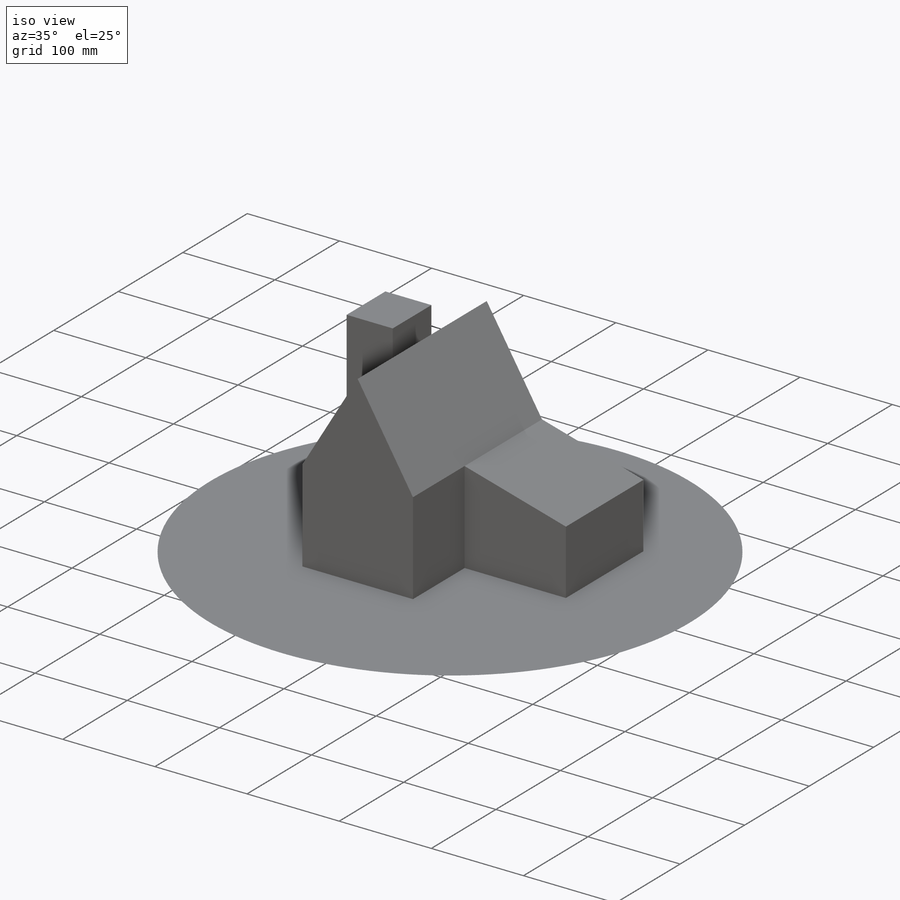
[diagram: iso view]
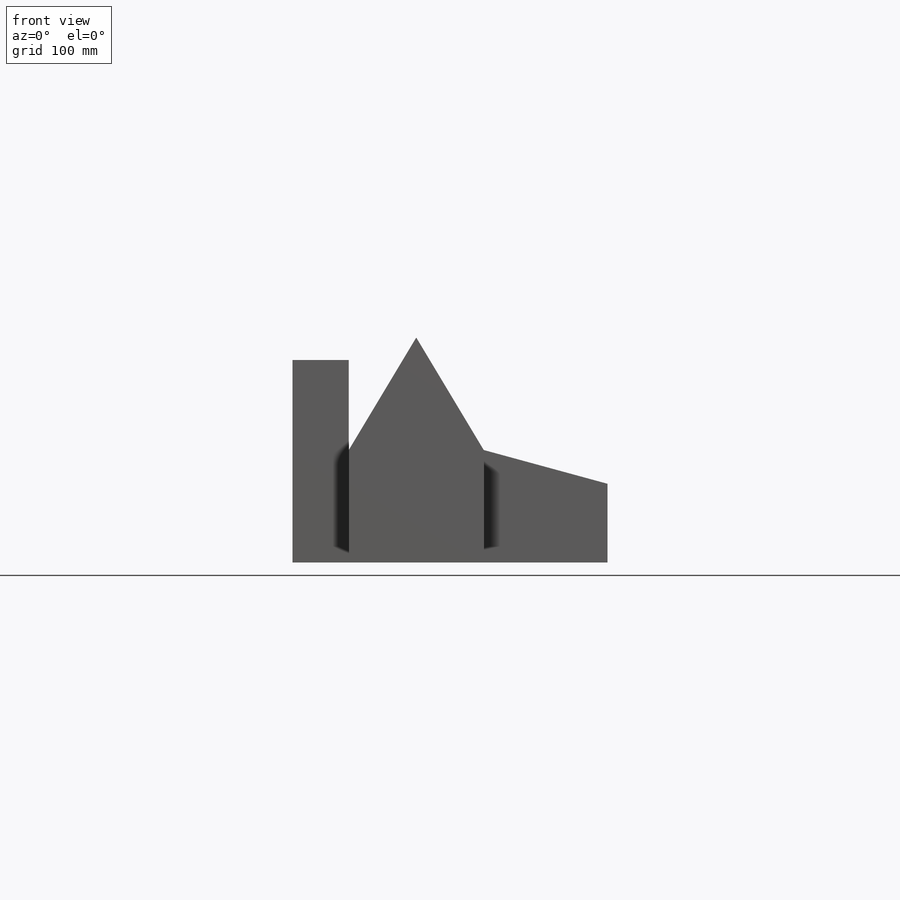
[diagram: front view]
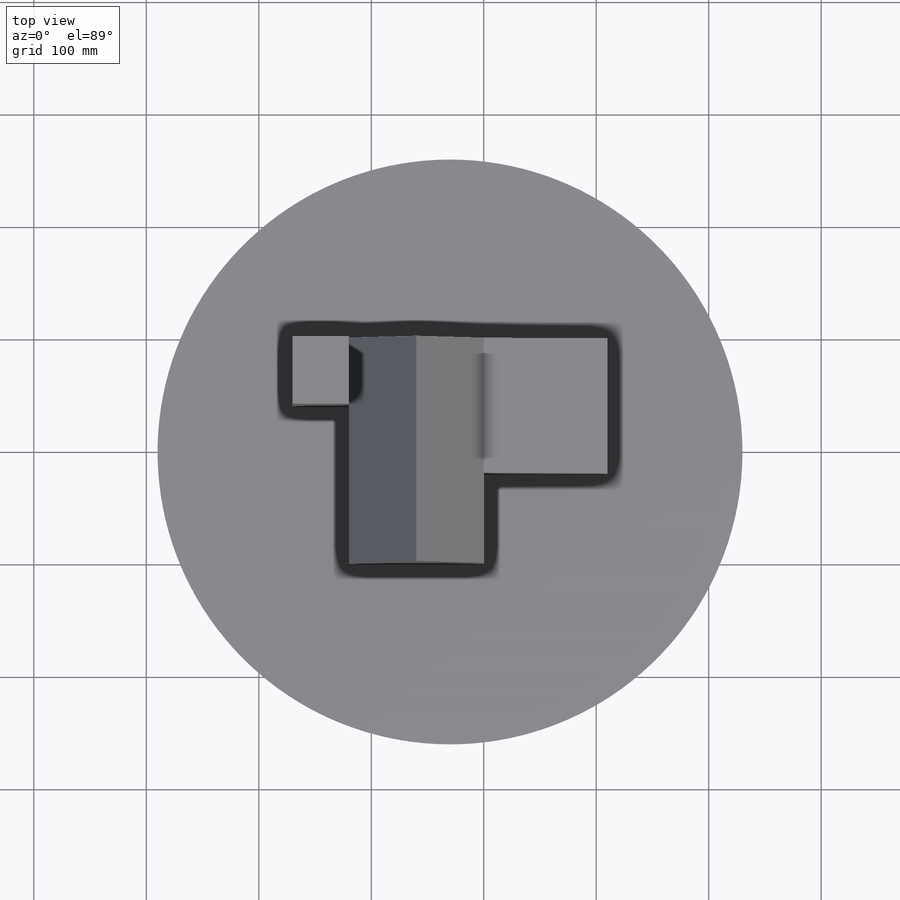
[diagram: top view]
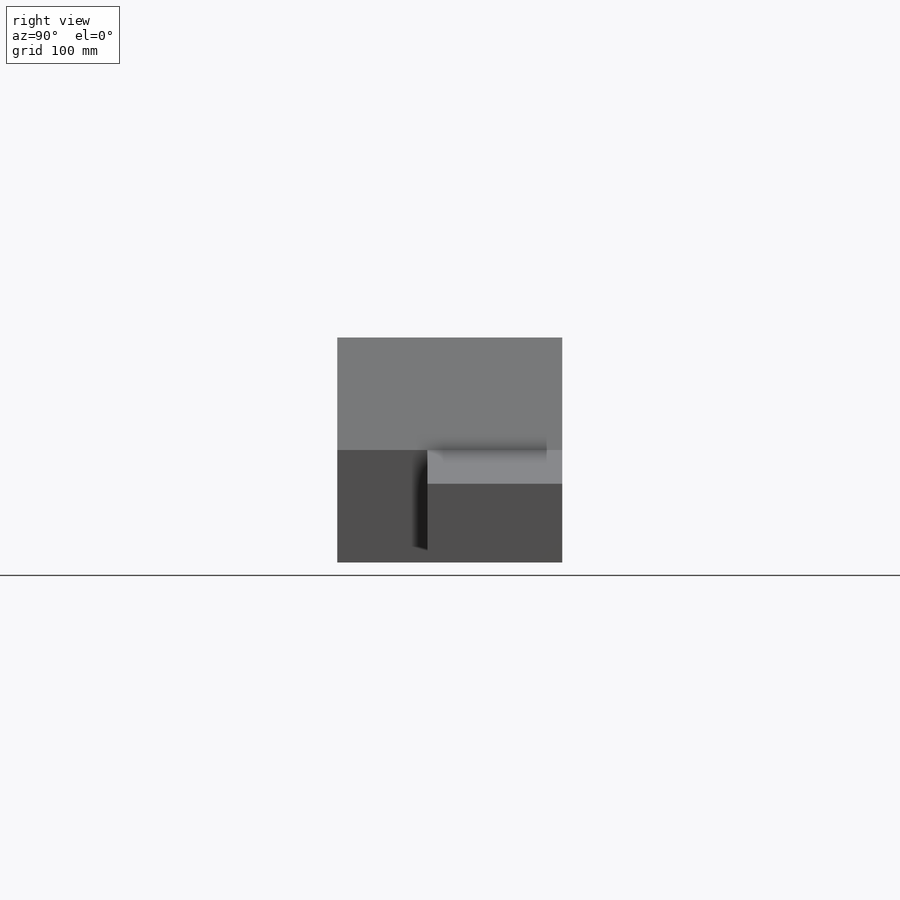
[diagram: right view]
SOLIDWORKS PART (.sldprt)
format: sldprt  version: not decoded by parser v0  size: 239,104 bytes
history: native  units: mm
features: sketch x4, extrude x3, material x1, cut_extrude x1 (+14 scaffold rows collapsed)
feature tree (23):
  scaffold x14  (default folders/planes/origin — collapsed)
  material  "Material <not specified>"
  sketch  "Sketch1"  dims[c1.D1=110.0mm c1.D2=120.0mm c1.D3=200.0mm c1.D4=70.0mm c1.D5=30.0mm c1.D6=100.0mm c1.D7=~78.035607mm c2.D2=100.0mm c2.D6=60.0mm c2.D7=60.0mm c2.D8=120.0mm]
  extrude  "Extrude1"  Depth=200mm
  sketch  "Sketch2"  dims[D1=80.0mm]
  cut_extrude  "Extrude2"  Depth=200mm
  sketch  "Sketch3"  dims[D1=50.0mm D2=60.0mm]
  extrude  "Extrude3"  Depth=180mm
  sketch  "Sketch4"  dims[D1=520.0mm]
  extrude  "Extrude4"  Depth=0.01mm
decode coverage: 8 of 8 modeling features carry decoded parameters
note: ~ marks probable driven/reference dimensions
note: suppression state not decoded; provenance and decode notes live in map.json
